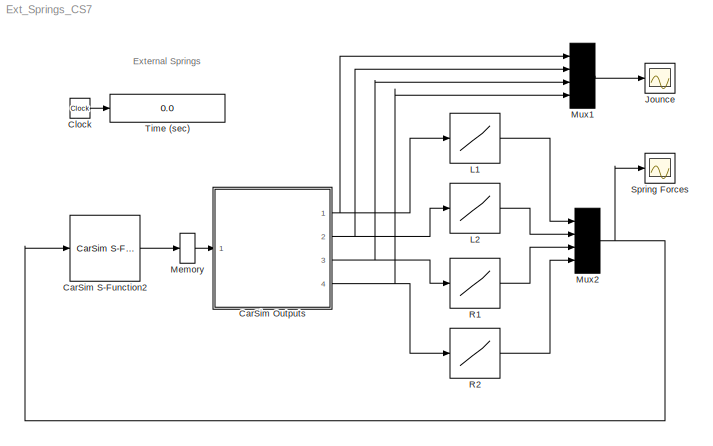
MODEL Ext_Springs_CS7
KIND model
CONFIG PreLoadFcn = cd Extensions/Simulink/springs\nspring_e_class\ncd ../../..
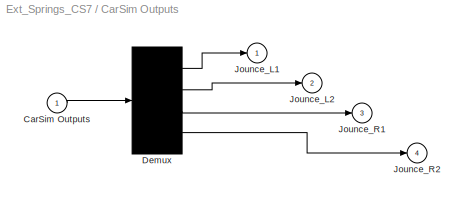
BLOCK [SubSystem] CarSim Outputs
  FunctionWithSeparateData = off
  MaskHideContents = off
  MaskIconFrame = on
  MaskIconOpaque = on
  MaskIconRotate = none
  MaskIconUnits = autoscale
  MinAlgLoopOccurrences = off
  Ports = [1, 4]
  PropExecContextOutsideSubsystem = off
  RTWSystemCode = Auto
BLOCK [Inport] CarSim Outputs/CarSim Outputs
  IconDisplay = Port number
  OutDataType = sfix(16)
  OutScaling = 2^0
BLOCK [Demux] CarSim Outputs/Demux
  Ports = [1, 4]
BLOCK [Outport] CarSim Outputs/Jounce_L1
  IconDisplay = Port number
  InitialOutput = 0
BLOCK [Outport] CarSim Outputs/Jounce_L2
  IconDisplay = Port number
  InitialOutput = 0
  Port = 2
BLOCK [Outport] CarSim Outputs/Jounce_R1
  IconDisplay = Port number
  InitialOutput = 0
  Port = 3
BLOCK [Outport] CarSim Outputs/Jounce_R2
  IconDisplay = Port number
  InitialOutput = 0
  Port = 4
BLOCK [Reference] CarSim S-Function2  REF=Solver_SF/CarSim S-Function2
  AttributesFormatString = Vehicle Code: %<VehicleCode>
  Ports = [1, 1]
  Priority = 1
  SourceBlock = Solver_SF/CarSim S-Function2
  SourceType = Vehicle math model library
  VehicleCode = ???
BLOCK [Clock] Clock
  Decimation = 10
BLOCK [Scope] Jounce
  DataFormat = Array
  Floating = off
  LimitDataPoints = off
  NumInputPorts = 1
  Ports = [1]
  SampleTime = 100
  TickLabels = on
  TimeRange = 7
  YMax = 40
  YMin = -60
  ZoomMode = xonly
BLOCK [Lookup] L1
  InputValues = FS_COMP_TABLE_F(:,1)
  OutDataType = sfix(16)
  OutScaling = 2^0
  Table = FS_COMP_TABLE_F(:,2)
BLOCK [Lookup] L2
  InputValues = FS_COMP_TABLE_R(:,1)
  OutDataType = sfix(16)
  OutScaling = 2^0
  Table = FS_COMP_TABLE_R(:,2)
BLOCK [Memory] Memory
BLOCK [Mux] Mux1
  Ports = [4, 1]
BLOCK [Mux] Mux2
  Ports = [4, 1]
BLOCK [Lookup] R1
  InputValues = FS_COMP_TABLE_F(:,1)
  OutDataType = sfix(16)
  OutScaling = 2^0
  Table = FS_COMP_TABLE_F(:,2)
BLOCK [Lookup] R2
  InputValues = FS_COMP_TABLE_R(:,1)
  OutDataType = sfix(16)
  OutScaling = 2^0
  Table = FS_COMP_TABLE_R(:,2)
BLOCK [Scope] Spring Forces
  DataFormat = Array
  Floating = off
  LimitDataPoints = off
  NumInputPorts = 1
  Ports = [1]
  SampleTime = 100
  SaveName = ScopeData1
  TickLabels = on
  TimeRange = 7
  YMax = 7000
  YMin = 2000
  ZoomMode = yonly
BLOCK [Display] Time (sec)
  Decimation = 100
  Format = bank
  Lockdown = off
  Ports = [1]
ANNOTATION (root): External Springs
LINE CarSim Outputs/CarSim Outputs:1 -> CarSim Outputs/Demux:1
LINE CarSim Outputs/Demux:1 -> CarSim Outputs/Jounce_L1:1
LINE CarSim Outputs/Demux:2 -> CarSim Outputs/Jounce_L2:1
LINE CarSim Outputs/Demux:3 -> CarSim Outputs/Jounce_R1:1
LINE CarSim Outputs/Demux:4 -> CarSim Outputs/Jounce_R2:1
NET CarSim Outputs:1 -> L1:1, Mux1:1
NET CarSim Outputs:2 -> L2:1, Mux1:2
NET CarSim Outputs:3 -> Mux1:3, R1:1
NET CarSim Outputs:4 -> Mux1:4, R2:1
LINE CarSim S-Function2:1 -> Memory:1
LINE Clock:1 -> Time (sec):1
LINE L1:1 -> Mux2:1
LINE L2:1 -> Mux2:2
LINE Memory:1 -> CarSim Outputs:1
LINE Mux1:1 -> Jounce:1
NET Mux2:1 -> CarSim S-Function2:1, Spring Forces:1
LINE R1:1 -> Mux2:3
LINE R2:1 -> Mux2:4
note: NET lines group one-source signal fan-out (src -> all destinations, sorted); 1:1 wires keep LINE
